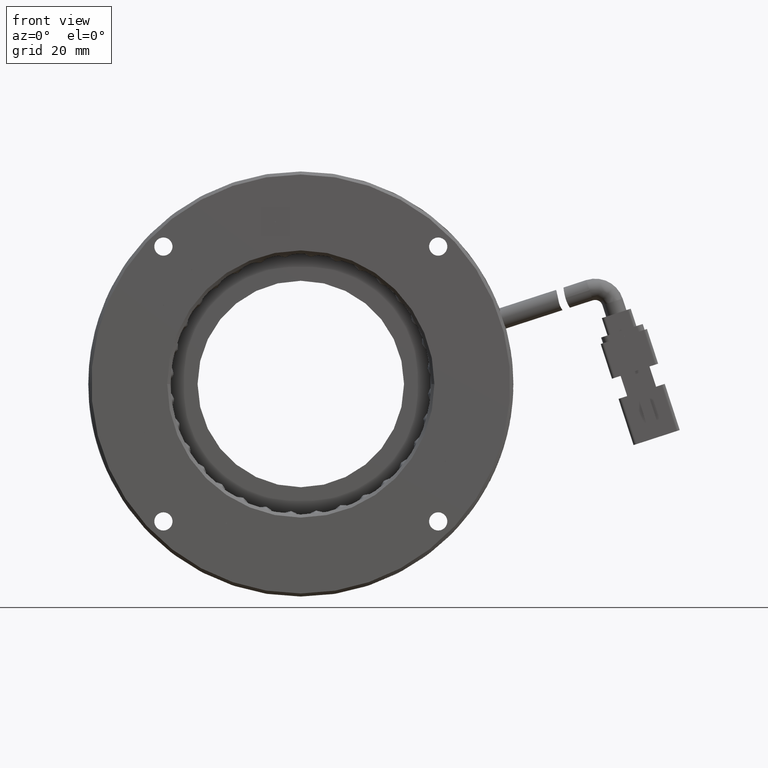
[diagram: clean part render]
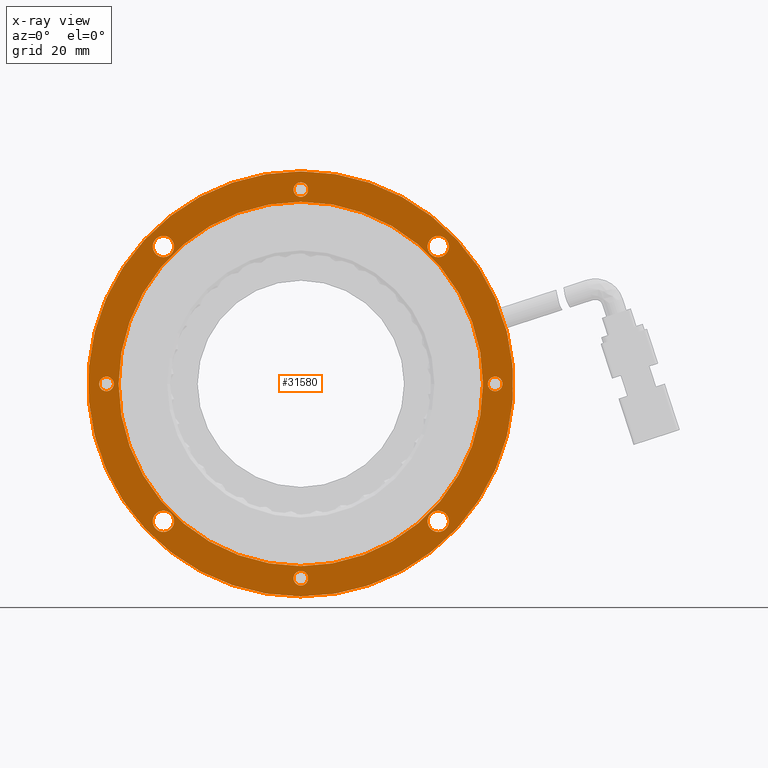
[diagram: x-ray — body ghosted, one internal face saturated and labeled with its STEP entity id]
A machine part, front view, then the same camera in x-ray: the body is ghosted and one INTERNAL B-rep face — a face not visible from any outside direction — is saturated and labeled: STEP entity #31580.
In plain terms, the highlighted planar face has unit normal (0, 1, 0).
Its self-contained STEP definition (entity closure, byte-faithful):
#126 = DIRECTION ( 'NONE',  ( 0.0000000000000000000, 0.0000000000000000000, -1.000000000000000000 ) ) ;
#155 = EDGE_LOOP ( 'NONE', ( #13980, #36884 ) ) ;
#197 = DIRECTION ( 'NONE',  ( -0.0000000000000000000, 1.000000000000000000, -0.0000000000000000000 ) ) ;
#269 = DIRECTION ( 'NONE',  ( 0.0000000000000000000, 0.0000000000000000000, 1.000000000000000000 ) ) ;
#782 = CARTESIAN_POINT ( 'NONE',  ( 26.29070785509565800, 11.26020291540426400, -1.199999999999798100 ) ) ;
#869 = CIRCLE ( 'NONE', #19465, 35.00000000000000000 ) ;
#888 = CIRCLE ( 'NONE', #34513, 1.199999999999999700 ) ;
#1046 = EDGE_CURVE ( 'NONE', #7630, #24812, #7844, .T. ) ;
#1093 = CARTESIAN_POINT ( 'NONE',  ( -28.33670914287390000, 11.26020291540426400, 20.87741699796946500 ) ) ;
#1601 = VERTEX_POINT ( 'NONE', #27928 ) ;
#1605 = CIRCLE ( 'NONE', #23843, 1.749999999999991100 ) ;
#1883 = ORIENTED_EDGE ( 'NONE', *, *, #5761, .F. ) ;
#1986 = CARTESIAN_POINT ( 'NONE',  ( -5.709292144904342300, 11.26020291540426400, -35.00000000000002100 ) ) ;
#2206 = AXIS2_PLACEMENT_3D ( 'NONE', #22989, #4426, #26088 ) ;
#2219 = DIRECTION ( 'NONE',  ( -0.0000000000000000000, 1.000000000000000000, -0.0000000000000000000 ) ) ;
#2590 = VERTEX_POINT ( 'NONE', #5584 ) ;
#2780 = EDGE_CURVE ( 'NONE', #1601, #31049, #17830, .T. ) ;
#2882 = CARTESIAN_POINT ( 'NONE',  ( -5.709292144904231300, 11.26020291540426400, -30.80000000000002200 ) ) ;
#3088 = VERTEX_POINT ( 'NONE', #5831 ) ;
#3593 = CIRCLE ( 'NONE', #22468, 1.749999999999991100 ) ;
#3755 = CARTESIAN_POINT ( 'NONE',  ( 26.29070785509565800, 11.26020291540426400, 1.200000000000201400 ) ) ;
#3927 = DIRECTION ( 'NONE',  ( 0.0000000000000000000, -1.000000000000000000, 0.0000000000000000000 ) ) ;
#4426 = DIRECTION ( 'NONE',  ( -0.0000000000000000000, 1.000000000000000000, -0.0000000000000000000 ) ) ;
#5216 = AXIS2_PLACEMENT_3D ( 'NONE', #20713, #2219, #23859 ) ;
#5226 = DIRECTION ( 'NONE',  ( 0.0000000000000000000, -1.000000000000000000, 0.0000000000000000000 ) ) ;
#5484 = CIRCLE ( 'NONE', #25298, 35.00000000000000000 ) ;
#5584 = CARTESIAN_POINT ( 'NONE',  ( -5.709292144904338800, 11.26020291540426400, 29.99999999999997900 ) ) ;
#5761 = EDGE_CURVE ( 'NONE', #2590, #39514, #20929, .T. ) ;
#5831 = CARTESIAN_POINT ( 'NONE',  ( 16.91812485306521900, 11.26020291540426400, 24.37741699796944800 ) ) ;
#6041 = ORIENTED_EDGE ( 'NONE', *, *, #28535, .T. ) ;
#6139 = EDGE_CURVE ( 'NONE', #39514, #2590, #14567, .T. ) ;
#6154 = CARTESIAN_POINT ( 'NONE',  ( -5.709292144904676300, 11.26020291540426400, 30.79999999999997900 ) ) ;
#6155 = AXIS2_PLACEMENT_3D ( 'NONE', #26290, #7725, #29480 ) ;
#6264 = FACE_BOUND ( 'NONE', #7384, .T. ) ;
#6404 = EDGE_LOOP ( 'NONE', ( #24991, #1883 ) ) ;
#6462 = CARTESIAN_POINT ( 'NONE',  ( -28.33670914287374700, 11.26020291540426400, -22.62741699796966100 ) ) ;
#7248 = FACE_BOUND ( 'NONE', #26844, .T. ) ;
#7384 = EDGE_LOOP ( 'NONE', ( #27103, #34280 ) ) ;
#7630 = VERTEX_POINT ( 'NONE', #13531 ) ;
#7662 = VERTEX_POINT ( 'NONE', #29172 ) ;
#7725 = DIRECTION ( 'NONE',  ( -0.0000000000000000000, 1.000000000000000000, -0.0000000000000000000 ) ) ;
#7762 = EDGE_CURVE ( 'NONE', #31049, #1601, #36265, .T. ) ;
#7785 = CARTESIAN_POINT ( 'NONE',  ( 26.29070785509565800, 11.26020291540426400, 2.016849253798697700E-013 ) ) ;
#7794 = CARTESIAN_POINT ( 'NONE',  ( 16.91812485306537200, 11.26020291540426400, -22.62741699796934800 ) ) ;
#7844 = CIRCLE ( 'NONE', #30216, 1.199999999999999700 ) ;
#8220 = DIRECTION ( 'NONE',  ( 0.0000000000000000000, -1.000000000000000000, 0.0000000000000000000 ) ) ;
#8730 = CARTESIAN_POINT ( 'NONE',  ( -37.70929214490434600, 11.26020291540426400, -1.200000000000019700 ) ) ;
#8939 = AXIS2_PLACEMENT_3D ( 'NONE', #16752, #16358, #15951 ) ;
#9560 = DIRECTION ( 'NONE',  ( 0.0000000000000000000, 0.0000000000000000000, 1.000000000000000000 ) ) ;
#9973 = VERTEX_POINT ( 'NONE', #30987 ) ;
#10613 = DIRECTION ( 'NONE',  ( 0.0000000000000000000, -1.000000000000000000, 0.0000000000000000000 ) ) ;
#10766 = ORIENTED_EDGE ( 'NONE', *, *, #2780, .F. ) ;
#10885 = DIRECTION ( 'NONE',  ( 0.0000000000000000000, 0.0000000000000000000, 1.000000000000000000 ) ) ;
#10899 = DIRECTION ( 'NONE',  ( 0.0000000000000000000, 0.0000000000000000000, 1.000000000000000000 ) ) ;
#11090 = CIRCLE ( 'NONE', #28315, 1.749999999999994700 ) ;
#11218 = EDGE_LOOP ( 'NONE', ( #6041, #34324 ) ) ;
#11298 = EDGE_CURVE ( 'NONE', #7662, #37025, #31018, .T. ) ;
#11300 = DIRECTION ( 'NONE',  ( 0.0000000000000000000, 0.0000000000000000000, -1.000000000000000000 ) ) ;
#11531 = ORIENTED_EDGE ( 'NONE', *, *, #39411, .F. ) ;
#11548 = DIRECTION ( 'NONE',  ( -0.0000000000000000000, -1.000000000000000000, -0.0000000000000000000 ) ) ;
#11649 = CARTESIAN_POINT ( 'NONE',  ( -5.709292144904342300, 11.26020291540426400, -30.00000000000002100 ) ) ;
#11686 = CARTESIAN_POINT ( 'NONE',  ( -5.709292144904342300, 11.26020291540426400, -2.081668171172168500E-014 ) ) ;
#11703 = AXIS2_PLACEMENT_3D ( 'NONE', #23776, #5226, #26902 ) ;
#12472 = ORIENTED_EDGE ( 'NONE', *, *, #26146, .F. ) ;
#13173 = DIRECTION ( 'NONE',  ( 0.0000000000000000000, 1.000000000000000000, 0.0000000000000000000 ) ) ;
#13531 = CARTESIAN_POINT ( 'NONE',  ( -5.709292144904231300, 11.26020291540426400, -33.20000000000002400 ) ) ;
#13815 = CIRCLE ( 'NONE', #6155, 1.749999999999991100 ) ;
#13882 = EDGE_CURVE ( 'NONE', #32182, #20163, #869, .T. ) ;
#13980 = ORIENTED_EDGE ( 'NONE', *, *, #30111, .T. ) ;
#14090 = AXIS2_PLACEMENT_3D ( 'NONE', #21677, #20965, #20828 ) ;
#14235 = ORIENTED_EDGE ( 'NONE', *, *, #7762, .F. ) ;
#14252 = ORIENTED_EDGE ( 'NONE', *, *, #1046, .F. ) ;
#14323 = CARTESIAN_POINT ( 'NONE',  ( -5.709292144904231300, 11.26020291540426400, -32.00000000000002100 ) ) ;
#14429 = ORIENTED_EDGE ( 'NONE', *, *, #14645, .F. ) ;
#14504 = FACE_BOUND ( 'NONE', #28802, .T. ) ;
#14567 = CIRCLE ( 'NONE', #8939, 30.00000000000000000 ) ;
#14645 = EDGE_CURVE ( 'NONE', #24812, #7630, #24455, .T. ) ;
#14673 = DIRECTION ( 'NONE',  ( 0.0000000000000000000, -1.000000000000000000, 0.0000000000000000000 ) ) ;
#14797 = CARTESIAN_POINT ( 'NONE',  ( -28.33670914287390000, 11.26020291540426400, 22.62741699796946200 ) ) ;
#15217 = VERTEX_POINT ( 'NONE', #28547 ) ;
#15241 = AXIS2_PLACEMENT_3D ( 'NONE', #37440, #18752, #269 ) ;
#15244 = VERTEX_POINT ( 'NONE', #3755 ) ;
#15255 = VERTEX_POINT ( 'NONE', #19270 ) ;
#15485 = FACE_BOUND ( 'NONE', #11218, .T. ) ;
#15513 = DIRECTION ( 'NONE',  ( 0.0000000000000000000, 0.0000000000000000000, 1.000000000000000000 ) ) ;
#15894 = AXIS2_PLACEMENT_3D ( 'NONE', #7785, #29550, #10885 ) ;
#15902 = AXIS2_PLACEMENT_3D ( 'NONE', #16919, #38739, #20025 ) ;
#15951 = DIRECTION ( 'NONE',  ( 0.0000000000000000000, 0.0000000000000000000, -1.000000000000000000 ) ) ;
#16183 = ORIENTED_EDGE ( 'NONE', *, *, #13882, .F. ) ;
#16358 = DIRECTION ( 'NONE',  ( -0.0000000000000000000, -1.000000000000000000, -0.0000000000000000000 ) ) ;
#16752 = CARTESIAN_POINT ( 'NONE',  ( -5.709292144904342300, 11.26020291540426400, -2.081668171172168500E-014 ) ) ;
#16919 = CARTESIAN_POINT ( 'NONE',  ( -28.33670914287390000, 11.26020291540426400, 22.62741699796946200 ) ) ;
#17076 = VERTEX_POINT ( 'NONE', #26609 ) ;
#17528 = EDGE_LOOP ( 'NONE', ( #23783, #33297 ) ) ;
#17557 = VERTEX_POINT ( 'NONE', #25172 ) ;
#17727 = AXIS2_PLACEMENT_3D ( 'NONE', #18708, #197, #21813 ) ;
#17830 = CIRCLE ( 'NONE', #14090, 1.199999999999999700 ) ;
#17878 = DIRECTION ( 'NONE',  ( 0.0000000000000000000, 0.0000000000000000000, 1.000000000000000000 ) ) ;
#18286 = CARTESIAN_POINT ( 'NONE',  ( -40.70929214490435300, 11.26020291540426400, -2.081668171172168500E-014 ) ) ;
#18633 = DIRECTION ( 'NONE',  ( 0.0000000000000000000, 1.000000000000000000, 0.0000000000000000000 ) ) ;
#18708 = CARTESIAN_POINT ( 'NONE',  ( 16.91812485306537200, 11.26020291540426400, -22.62741699796934800 ) ) ;
#18752 = DIRECTION ( 'NONE',  ( 0.0000000000000000000, -1.000000000000000000, 0.0000000000000000000 ) ) ;
#19270 = CARTESIAN_POINT ( 'NONE',  ( -28.33670914287390000, 11.26020291540426400, 24.37741699796945500 ) ) ;
#19465 = AXIS2_PLACEMENT_3D ( 'NONE', #37310, #18633, #126 ) ;
#20025 = DIRECTION ( 'NONE',  ( 0.0000000000000000000, 0.0000000000000000000, 1.000000000000000000 ) ) ;
#20163 = VERTEX_POINT ( 'NONE', #1986 ) ;
#20291 = CIRCLE ( 'NONE', #15902, 1.749999999999994700 ) ;
#20713 = CARTESIAN_POINT ( 'NONE',  ( 16.91812485306521900, 11.26020291540426400, 22.62741699796945800 ) ) ;
#20828 = DIRECTION ( 'NONE',  ( 0.0000000000000000000, 0.0000000000000000000, 1.000000000000000000 ) ) ;
#20916 = EDGE_CURVE ( 'NONE', #15255, #27336, #20291, .T. ) ;
#20929 = CIRCLE ( 'NONE', #30037, 30.00000000000000000 ) ;
#20965 = DIRECTION ( 'NONE',  ( 0.0000000000000000000, -1.000000000000000000, 0.0000000000000000000 ) ) ;
#21044 = CARTESIAN_POINT ( 'NONE',  ( 16.91812485306537200, 11.26020291540426400, -24.37741699796933800 ) ) ;
#21266 = AXIS2_PLACEMENT_3D ( 'NONE', #18286, #40133, #21420 ) ;
#21420 = DIRECTION ( 'NONE',  ( 0.0000000000000000000, -0.0000000000000000000, 1.000000000000000000 ) ) ;
#21677 = CARTESIAN_POINT ( 'NONE',  ( -37.70929214490434600, 11.26020291540426400, -1.986335369231264700E-014 ) ) ;
#21772 = FACE_BOUND ( 'NONE', #6404, .T. ) ;
#21813 = DIRECTION ( 'NONE',  ( 0.0000000000000000000, 0.0000000000000000000, 1.000000000000000000 ) ) ;
#22461 = CARTESIAN_POINT ( 'NONE',  ( -5.709292144904231300, 11.26020291540426400, -32.00000000000002100 ) ) ;
#22468 = AXIS2_PLACEMENT_3D ( 'NONE', #6462, #28157, #9560 ) ;
#22480 = ORIENTED_EDGE ( 'NONE', *, *, #23575, .F. ) ;
#22642 = ORIENTED_EDGE ( 'NONE', *, *, #22663, .F. ) ;
#22663 = EDGE_CURVE ( 'NONE', #17076, #33254, #888, .T. ) ;
#22765 = FACE_BOUND ( 'NONE', #39036, .T. ) ;
#22989 = CARTESIAN_POINT ( 'NONE',  ( 16.91812485306521900, 11.26020291540426400, 22.62741699796945800 ) ) ;
#23047 = CARTESIAN_POINT ( 'NONE',  ( -5.709292144904337900, 11.26020291540426400, 34.99999999999998600 ) ) ;
#23575 = EDGE_CURVE ( 'NONE', #33254, #17076, #31822, .T. ) ;
#23776 = CARTESIAN_POINT ( 'NONE',  ( 26.29070785509565800, 11.26020291540426400, 2.016849253798697700E-013 ) ) ;
#23783 = ORIENTED_EDGE ( 'NONE', *, *, #11298, .T. ) ;
#23843 = AXIS2_PLACEMENT_3D ( 'NONE', #7794, #29563, #10899 ) ;
#23859 = DIRECTION ( 'NONE',  ( 0.0000000000000000000, 0.0000000000000000000, 1.000000000000000000 ) ) ;
#24455 = CIRCLE ( 'NONE', #26034, 1.199999999999999700 ) ;
#24812 = VERTEX_POINT ( 'NONE', #2882 ) ;
#24991 = ORIENTED_EDGE ( 'NONE', *, *, #6139, .F. ) ;
#25172 = CARTESIAN_POINT ( 'NONE',  ( -28.33670914287374700, 11.26020291540426400, -20.87741699796966800 ) ) ;
#25298 = AXIS2_PLACEMENT_3D ( 'NONE', #31875, #13173, #34952 ) ;
#25441 = EDGE_CURVE ( 'NONE', #26174, #15244, #39678, .T. ) ;
#25600 = DIRECTION ( 'NONE',  ( 0.0000000000000000000, 0.0000000000000000000, 1.000000000000000000 ) ) ;
#26034 = AXIS2_PLACEMENT_3D ( 'NONE', #22461, #3927, #25600 ) ;
#26088 = DIRECTION ( 'NONE',  ( 0.0000000000000000000, 0.0000000000000000000, 1.000000000000000000 ) ) ;
#26097 = ORIENTED_EDGE ( 'NONE', *, *, #25441, .F. ) ;
#26146 = EDGE_CURVE ( 'NONE', #20163, #32182, #5484, .T. ) ;
#26159 = AXIS2_PLACEMENT_3D ( 'NONE', #26803, #8220, #30003 ) ;
#26174 = VERTEX_POINT ( 'NONE', #782 ) ;
#26290 = CARTESIAN_POINT ( 'NONE',  ( -28.33670914287374700, 11.26020291540426400, -22.62741699796966100 ) ) ;
#26429 = EDGE_LOOP ( 'NONE', ( #12472, #16183 ) ) ;
#26609 = CARTESIAN_POINT ( 'NONE',  ( -5.709292144904676300, 11.26020291540426400, 33.19999999999998200 ) ) ;
#26650 = CIRCLE ( 'NONE', #5216, 1.749999999999991100 ) ;
#26803 = CARTESIAN_POINT ( 'NONE',  ( -37.70929214490434600, 11.26020291540426400, -1.986335369231264700E-014 ) ) ;
#26844 = EDGE_LOOP ( 'NONE', ( #14429, #14252 ) ) ;
#26902 = DIRECTION ( 'NONE',  ( 0.0000000000000000000, 0.0000000000000000000, 1.000000000000000000 ) ) ;
#27103 = ORIENTED_EDGE ( 'NONE', *, *, #20916, .T. ) ;
#27336 = VERTEX_POINT ( 'NONE', #1093 ) ;
#27559 = CIRCLE ( 'NONE', #11703, 1.199999999999999700 ) ;
#27928 = CARTESIAN_POINT ( 'NONE',  ( -37.70929214490434600, 11.26020291540426400, 1.199999999999979700 ) ) ;
#28157 = DIRECTION ( 'NONE',  ( -0.0000000000000000000, 1.000000000000000000, -0.0000000000000000000 ) ) ;
#28315 = AXIS2_PLACEMENT_3D ( 'NONE', #14797, #36561, #17878 ) ;
#28535 = EDGE_CURVE ( 'NONE', #3088, #15217, #29551, .T. ) ;
#28547 = CARTESIAN_POINT ( 'NONE',  ( 16.91812485306521900, 11.26020291540426400, 20.87741699796946500 ) ) ;
#28774 = EDGE_LOOP ( 'NONE', ( #10766, #14235 ) ) ;
#28802 = EDGE_LOOP ( 'NONE', ( #22642, #22480 ) ) ;
#29172 = CARTESIAN_POINT ( 'NONE',  ( 16.91812485306537200, 11.26020291540426400, -20.87741699796935500 ) ) ;
#29273 = CARTESIAN_POINT ( 'NONE',  ( -5.709292144904676300, 11.26020291540426400, 31.99999999999997900 ) ) ;
#29480 = DIRECTION ( 'NONE',  ( 0.0000000000000000000, 0.0000000000000000000, 1.000000000000000000 ) ) ;
#29550 = DIRECTION ( 'NONE',  ( 0.0000000000000000000, -1.000000000000000000, 0.0000000000000000000 ) ) ;
#29551 = CIRCLE ( 'NONE', #2206, 1.749999999999991100 ) ;
#29563 = DIRECTION ( 'NONE',  ( -0.0000000000000000000, 1.000000000000000000, -0.0000000000000000000 ) ) ;
#30003 = DIRECTION ( 'NONE',  ( 0.0000000000000000000, 0.0000000000000000000, 1.000000000000000000 ) ) ;
#30037 = AXIS2_PLACEMENT_3D ( 'NONE', #11686, #11548, #11300 ) ;
#30111 = EDGE_CURVE ( 'NONE', #17557, #9973, #13815, .T. ) ;
#30112 = FACE_BOUND ( 'NONE', #17528, .T. ) ;
#30216 = AXIS2_PLACEMENT_3D ( 'NONE', #14323, #14673, #15513 ) ;
#30854 = EDGE_CURVE ( 'NONE', #37025, #7662, #1605, .T. ) ;
#30987 = CARTESIAN_POINT ( 'NONE',  ( -28.33670914287374700, 11.26020291540426400, -24.37741699796965000 ) ) ;
#31018 = CIRCLE ( 'NONE', #17727, 1.749999999999991100 ) ;
#31049 = VERTEX_POINT ( 'NONE', #8730 ) ;
#31108 = FACE_OUTER_BOUND ( 'NONE', #26429, .T. ) ;
#31558 = EDGE_CURVE ( 'NONE', #27336, #15255, #11090, .T. ) ;
#31580 = ADVANCED_FACE ( 'NONE', ( #31108, #39373, #7248, #22765, #14504, #15485, #6264, #38389, #30112, #21772 ), #36843, .F. ) ;
#31822 = CIRCLE ( 'NONE', #15241, 1.199999999999999700 ) ;
#31865 = EDGE_CURVE ( 'NONE', #15217, #3088, #26650, .T. ) ;
#31875 = CARTESIAN_POINT ( 'NONE',  ( -5.709292144904342300, 11.26020291540426400, -2.081668171172168500E-014 ) ) ;
#32182 = VERTEX_POINT ( 'NONE', #23047 ) ;
#32443 = DIRECTION ( 'NONE',  ( 0.0000000000000000000, 0.0000000000000000000, 1.000000000000000000 ) ) ;
#33254 = VERTEX_POINT ( 'NONE', #6154 ) ;
#33297 = ORIENTED_EDGE ( 'NONE', *, *, #30854, .T. ) ;
#34280 = ORIENTED_EDGE ( 'NONE', *, *, #31558, .T. ) ;
#34324 = ORIENTED_EDGE ( 'NONE', *, *, #31865, .T. ) ;
#34513 = AXIS2_PLACEMENT_3D ( 'NONE', #29273, #10613, #32443 ) ;
#34693 = EDGE_CURVE ( 'NONE', #9973, #17557, #3593, .T. ) ;
#34952 = DIRECTION ( 'NONE',  ( 0.0000000000000000000, 0.0000000000000000000, -1.000000000000000000 ) ) ;
#36265 = CIRCLE ( 'NONE', #26159, 1.199999999999999700 ) ;
#36561 = DIRECTION ( 'NONE',  ( -0.0000000000000000000, 1.000000000000000000, -0.0000000000000000000 ) ) ;
#36843 = PLANE ( 'NONE',  #21266 ) ;
#36884 = ORIENTED_EDGE ( 'NONE', *, *, #34693, .T. ) ;
#37025 = VERTEX_POINT ( 'NONE', #21044 ) ;
#37310 = CARTESIAN_POINT ( 'NONE',  ( -5.709292144904342300, 11.26020291540426400, -2.081668171172168500E-014 ) ) ;
#37440 = CARTESIAN_POINT ( 'NONE',  ( -5.709292144904676300, 11.26020291540426400, 31.99999999999997900 ) ) ;
#38389 = FACE_BOUND ( 'NONE', #155, .T. ) ;
#38739 = DIRECTION ( 'NONE',  ( -0.0000000000000000000, 1.000000000000000000, -0.0000000000000000000 ) ) ;
#39036 = EDGE_LOOP ( 'NONE', ( #11531, #26097 ) ) ;
#39373 = FACE_BOUND ( 'NONE', #28774, .T. ) ;
#39411 = EDGE_CURVE ( 'NONE', #15244, #26174, #27559, .T. ) ;
#39514 = VERTEX_POINT ( 'NONE', #11649 ) ;
#39678 = CIRCLE ( 'NONE', #15894, 1.199999999999999700 ) ;
#40133 = DIRECTION ( 'NONE',  ( 0.0000000000000000000, 1.000000000000000000, 0.0000000000000000000 ) ) ;